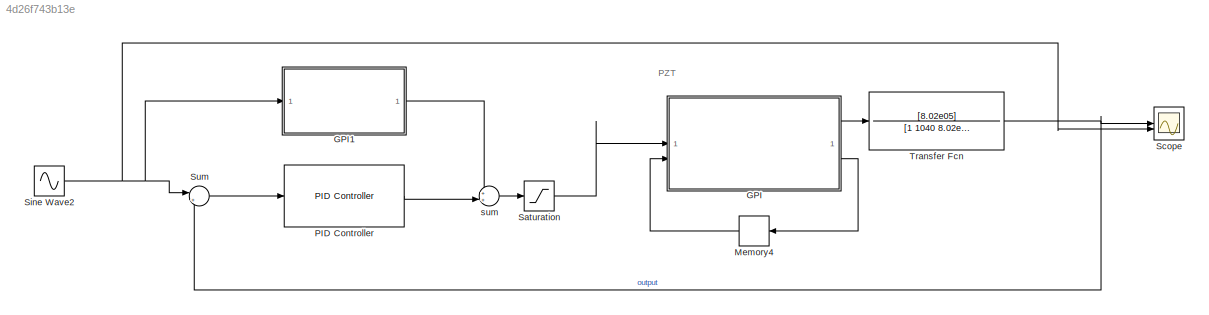
MODEL slx_4d26f743b13e
KIND model
CONFIG AbsTol = auto
CONFIG EnableMultiTasking = off
CONFIG FixedStep = auto
CONFIG MaxStep = auto
CONFIG MinStep = auto
CONFIG RelTol = 1e-3
CONFIG SampleTimeConstraint = Unconstrained
CONFIG SolverName = VariableStepAuto
CONFIG StartTime = 0.0
CONFIG StopTime = 10.0
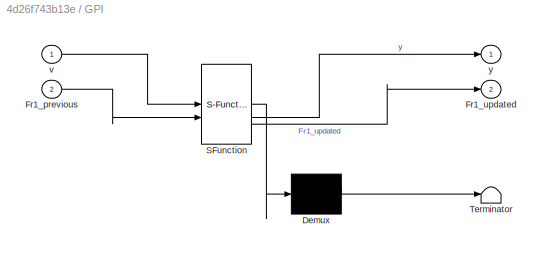
BLOCK [SubSystem] GPI
  ErrorFcn = Stateflow.Translate.translate
  PermitHierarchicalResolution = ExplicitOnly
  SFBlockType = MATLAB Function
  TreatAsAtomicUnit = on
BLOCK [Demux] GPI/ Demux 
  Outputs = 1
BLOCK [S-Function] GPI/ SFunction 
  EnableBusSupport = on
  FunctionName = sf_sfun
  PortCounts = [2 3]
  SFcnIsStateOwnerBlock = off
  SFunctionDeploymentMode = off
  Tag = Stateflow S-Function 7
BLOCK [Terminator] GPI/ Terminator 
BLOCK [Inport] GPI/Fr1_previous
  Port = 2
BLOCK [Outport] GPI/Fr1_updated
  Port = 2
BLOCK [Inport] GPI/v
BLOCK [Outport] GPI/y
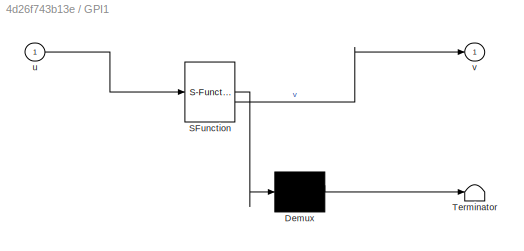
BLOCK [SubSystem] GPI1
  ErrorFcn = Stateflow.Translate.translate
  PermitHierarchicalResolution = ExplicitOnly
  SFBlockType = MATLAB Function
  TreatAsAtomicUnit = on
BLOCK [Demux] GPI1/ Demux 
  Outputs = 1
BLOCK [S-Function] GPI1/ SFunction 
  EnableBusSupport = on
  FunctionName = sf_sfun
  PortCounts = [1 2]
  SFcnIsStateOwnerBlock = off
  SFunctionDeploymentMode = off
  Tag = Stateflow S-Function 1
BLOCK [Terminator] GPI1/ Terminator 
BLOCK [Inport] GPI1/u
BLOCK [Outport] GPI1/v
BLOCK [Memory] Memory4
  InheritSampleTime = on
  LinearizeAsDelay = on
  LinearizeMemory = on
  NameLocation = top
BLOCK [Reference] PID Controller  REF=slpidlib/PID Controller
  LibrarySourceBlock = simulink/Continuous/PID Controller
  SourceBlock = slpidlib/PID Controller
  SourceType = PID 1dof
BLOCK [Saturate] Saturation
  LowerLimit = 0
  UpperLimit = 10
BLOCK [Scope] Scope
  Floating = off
  NumInputPorts = 2
  ScopeSpecificationString = Simulink.scopes.TimeScopeBlockCfg('CurrentConfiguration', extmgr.ConfigurationSet(extmgr.Configuration('Core','General UI',true),extmgr.Configuration('Core','Source UI',true),extmgr.Configuration('Sources','WiredSimulink',true),extmgr.Configuration('Visuals','Time Domain',true,'SerializedDisplays',{struct('MinYLimReal','-0.56252','MaxYLimReal','5.06267','YLabelReal','','MinYLimMag','0.00000','MaxY...<+1407ch>
BLOCK [Sin] Sine Wave2
  Amplitude = 2
  Bias = 2.5
  Frequency = 2*pi
  SampleTime = 0.0001
BLOCK [Sum] Sum
  Inputs = |+-
BLOCK [TransferFcn] Transfer Fcn
  Denominator = [1 1040 8.02e05]
  Numerator = [8.02e05]
BLOCK [Sum] sum
  Inputs = ++|
ANNOTATION (root): PZT
LINE GPI1:1 -> sum:1
LINE GPI:1 -> Transfer Fcn:1
LINE GPI:2 -> Memory4:1
LINE Memory4:1 -> GPI:2
LINE PID Controller:1 -> sum:2
LINE Saturation:1 -> GPI:1
NET Sine Wave2:1 -> GPI1:1, Scope:2, Sum:1
LINE Sum:1 -> PID Controller:1
NET Transfer Fcn:1 -> Scope:1, Sum:2
LINE sum:1 -> Saturation:1
note: NET lines group one-source signal fan-out (src -> all destinations, sorted); 1:1 wires keep LINE
CHART GPI1 states=1 transitions=1
  STATE_LABEL 'eML_blk_kernel()'
  STATE_LABEL 'SCRIPT:\nfunction v = RDGPI_Inv_Model(u)\n    %20250804\n    rd = [ -0.50 0.00 0.15 0.30 0.60 1.20 2.40 4.80 ];\n    eta = [ 0.000100 0.383196 0.006316 0.056768 0.021432 -0.174859 -0.044040 -0.025427 ];\n    P = [ 2.125828 1.019777 0.296430 0.530357 ];\n    tau = [ -0.191598 0.000000 0.057479 0.115906 0.249790 0.530417 0.881841 1.478992 ];\n    mu = [ -0.000681 2.609631 -0.042316 -0.326569 -0.102678 1.27...<+2296ch>'
CHART GPI states=1 transitions=1
  STATE_LABEL 'eML_blk_kernel()'
  STATE_LABEL 'SCRIPT:\nfunction [y,Fr1_updated] = GPI_Model(v, Fr1_previous)\n    %% v  % 0-10V,0.001s,1000hz\n    \n    rd = [-8    -6    -4    -2     0     2     4     6     8];\n    eta = [1.0000    1.0000    1.0000    1.0000    1.2437   -0.1103   -0.0787   -0.1742   -0.1767];\n    r=[0     1     2     3     4     5];\n    n=length(r);\n    P=[0.7460    0.1860    0.0650    0.0855    0.0362   -0.1159];\n\n    Ad = zero...<+599ch>'
CHART  states=0 transitions=0
CHART  states=0 transitions=0
